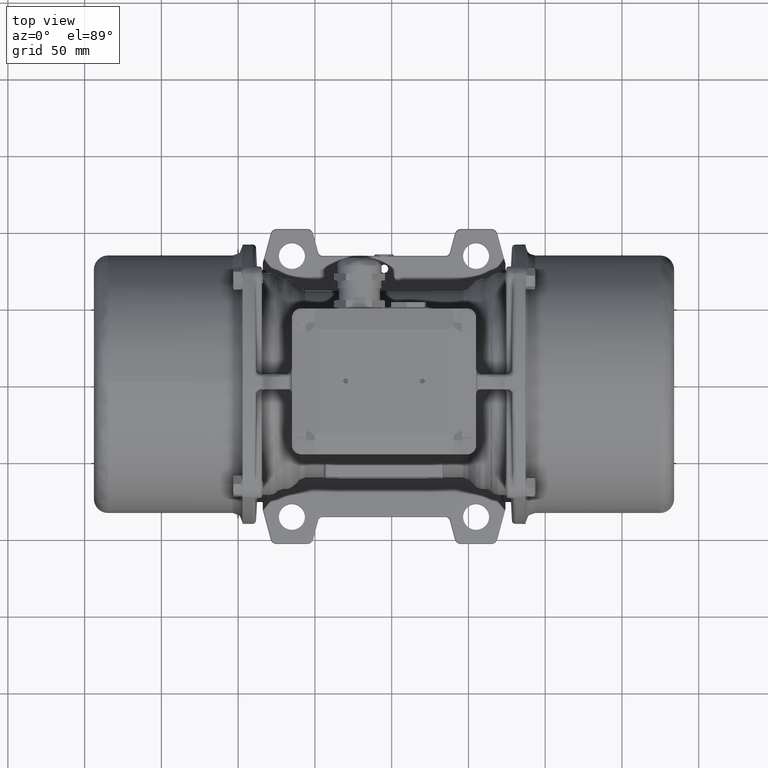
[diagram: clean part render]
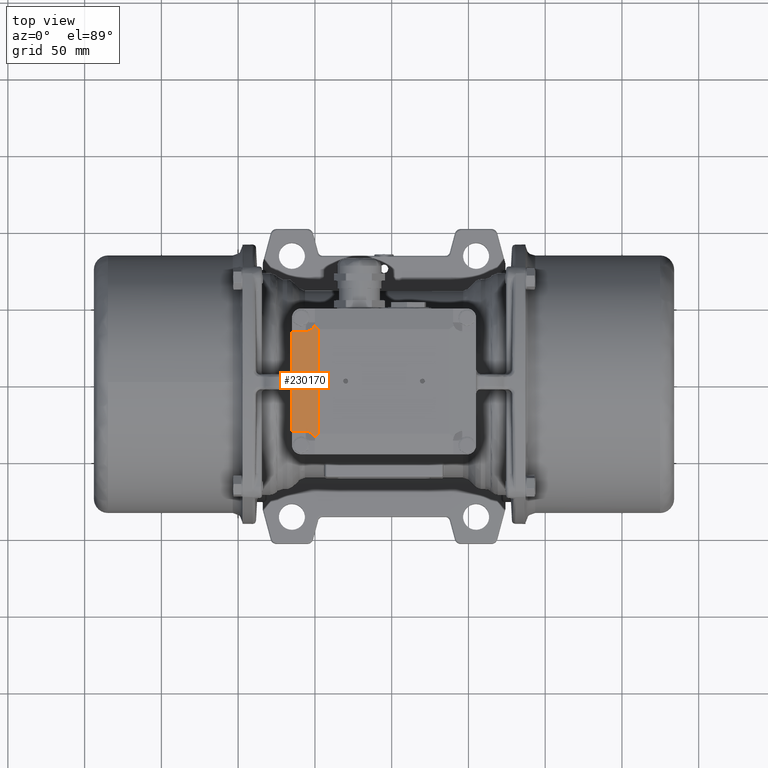
[diagram: same view with one face highlighted and labeled with its STEP entity id]
A machine part, top view. The second image highlights one B-rep face of the part: STEP entity #230170.
In plain terms, the highlighted planar face has unit normal (-0.169, 0, 0.9856).
Its self-contained STEP definition (entity closure, byte-faithful):
#15305 = EDGE_CURVE ( 'NONE', #110453, #136446, #65762, .T. ) ;
#15315 = EDGE_CURVE ( 'NONE', #136446, #110483, #18416, .T. ) ;
#15317 = EDGE_CURVE ( 'NONE', #110483, #136360, #65814, .T. ) ;
#15321 = EDGE_CURVE ( 'NONE', #110414, #110453, #65855, .T. ) ;
#15424 = EDGE_CURVE ( 'NONE', #136505, #110389, #66378, .T. ) ;
#15450 = EDGE_CURVE ( 'NONE', #110414, #110464, #66441, .T. ) ;
#15454 = EDGE_CURVE ( 'NONE', #110389, #110464, #18437, .T. ) ;
#15459 = EDGE_CURVE ( 'NONE', #136505, #136360, #66478, .T. ) ;
#18416 = B_SPLINE_CURVE_WITH_KNOTS ( 'NONE', 3,
 ( #65092, #65100, #65102, #65104, #65106, #65108, #65110, #65111, #65113, #65115, #65117, #65119, #65121, #65122, #65124, #65126 ),
 .UNSPECIFIED., .F., .F.,
 ( 4, 2, 2, 2, 2, 2, 2, 4 ),
 ( 9.664760850780578800E-017, 0.001789255609655789600, 0.002683883414483642500, 0.003578511219311495100, 0.004473139024139347700, 0.005367766828967200800, 0.006262394633795053000, 0.007157022438622906100 ),
 .UNSPECIFIED. ) ;
#18437 = B_SPLINE_CURVE_WITH_KNOTS ( 'NONE', 3,
 ( #65690, #65685, #65696, #65698, #65700, #65702, #65703, #65704, #65706, #65708, #65710, #65712, #65714, #65715 ),
 .UNSPECIFIED., .F., .F.,
 ( 4, 2, 2, 2, 2, 2, 4 ),
 ( 9.005604363847353800E-016, 0.001789554356158112000, 0.002684331534236716400, 0.003579108712315320100, 0.004473885890393923900, 0.005368663068472528100, 0.007158217424629723400 ),
 .UNSPECIFIED. ) ;
#46449 = CARTESIAN_POINT ( 'NONE',  ( -64.99999908357961000, 32.49999990928190400, 38.00000190734859700 ) ) ;
#46618 = CARTESIAN_POINT ( 'NONE',  ( -50.43282410804400200, 36.26246492815429400, 40.49723190315469900 ) ) ;
#46731 = CARTESIAN_POINT ( 'NONE',  ( -64.99999908357961000, -32.49999990928190400, 38.00000190734859700 ) ) ;
#65031 = CARTESIAN_POINT ( 'NONE',  ( -47.49999908357960300, 33.99999990928185400, 41.00000190734859700 ) ) ;
#65044 = DIRECTION ( 'NONE',  ( -0.7845877194088983800, 0.6052533835439801700, -0.1345007518986684700 ) ) ;
#65092 = CARTESIAN_POINT ( 'NONE',  ( -50.43282410804400200, 36.26246492815429400, 40.49723190315469900 ) ) ;
#65099 = CARTESIAN_POINT ( 'NONE',  ( -56.24999908357960300, 32.49999990928190400, 39.50000190734859700 ) ) ;
#65100 = CARTESIAN_POINT ( 'NONE',  ( -50.65802331653959100, 35.70215038198751500, 40.45862632455543200 ) ) ;
#65102 = CARTESIAN_POINT ( 'NONE',  ( -50.95984384170502300, 35.19023733037408200, 40.40688566309853500 ) ) ;
#65104 = CARTESIAN_POINT ( 'NONE',  ( -51.52422528310053500, 34.49289719227068200, 40.31013455885931800 ) ) ;
#65106 = CARTESIAN_POINT ( 'NONE',  ( -51.73076423191752600, 34.27371434484155100, 40.27472788191924700 ) ) ;
#65108 = CARTESIAN_POINT ( 'NONE',  ( -52.16809855690352300, 33.87351158178094600, 40.19975628335021200 ) ) ;
#65110 = CARTESIAN_POINT ( 'NONE',  ( -52.40037487177539800, 33.69056616853438200, 40.15993748651503400 ) ) ;
#65111 = CARTESIAN_POINT ( 'NONE',  ( -52.89218832989576700, 33.35904088472872100, 40.07562660798012600 ) ) ;
#65113 = CARTESIAN_POINT ( 'NONE',  ( -53.15360195353986200, 33.20984969578398700, 40.03081284392686000 ) ) ;
#65115 = CARTESIAN_POINT ( 'NONE',  ( -53.68827294238727900, 32.95530982313656000, 39.93915496012444800 ) ) ;
#65117 = CARTESIAN_POINT ( 'NONE',  ( -53.96291245694632000, 32.84870371273190400, 39.89207390048572700 ) ) ;
#65119 = CARTESIAN_POINT ( 'NONE',  ( -54.52660119573347700, 32.67625804604318100, 39.79544154526509200 ) ) ;
#65121 = CARTESIAN_POINT ( 'NONE',  ( -54.81728484804259000, 32.61020385219211400, 39.74561006201210500 ) ) ;
#65122 = CARTESIAN_POINT ( 'NONE',  ( -55.40573941704826700, 32.52209341906424800, 39.64473213589685900 ) ) ;
#65124 = CARTESIAN_POINT ( 'NONE',  ( -55.70189787076042600, 32.49999990928194600, 39.59396211526046700 ) ) ;
#65126 = CARTESIAN_POINT ( 'NONE',  ( -55.99999908357910500, 32.49999990928190400, 39.54285905020579900 ) ) ;
#65134 = DIRECTION ( 'NONE',  ( -0.9856222548132663700, 0.0000000000000000000, -0.1689638151108465400 ) ) ;
#65140 = CARTESIAN_POINT ( 'NONE',  ( -47.49999908357960300, -1.279080140154791900E-005, 41.00000190734859700 ) ) ;
#65155 = DIRECTION ( 'NONE',  ( 0.0000000000000000000, 1.000000000000000000, 0.0000000000000000000 ) ) ;
#65616 = CARTESIAN_POINT ( 'NONE',  ( -64.99999908357961000, -32.49999990928190400, 38.00000190734859700 ) ) ;
#65620 = DIRECTION ( 'NONE',  ( 0.9856222548132664900, 0.0000000000000000000, 0.1689638151108460700 ) ) ;
#65683 = CARTESIAN_POINT ( 'NONE',  ( -47.49999908357960300, -34.00000009071810300, 41.00000190734859700 ) ) ;
#65685 = CARTESIAN_POINT ( 'NONE',  ( -55.40363959903209700, -32.49999990928191100, 39.64509210469960700 ) ) ;
#65686 = DIRECTION ( 'NONE',  ( -0.7845877194088827200, -0.6052533835440008200, -0.1345007518986672000 ) ) ;
#65690 = CARTESIAN_POINT ( 'NONE',  ( -55.99999908357870000, -32.49999990928190400, 39.54285905020589800 ) ) ;
#65696 = CARTESIAN_POINT ( 'NONE',  ( -54.82183988267152600, -32.58698480422104600, 39.74482919893283400 ) ) ;
#65698 = CARTESIAN_POINT ( 'NONE',  ( -53.97062738875449400, -32.84583310876362100, 39.89075134074720100 ) ) ;
#65700 = CARTESIAN_POINT ( 'NONE',  ( -53.69101023055166900, -32.95420698245894900, 39.93868571072484000 ) ) ;
#65702 = CARTESIAN_POINT ( 'NONE',  ( -53.15745856155935900, -33.20781585246002300, 40.03015171112352300 ) ) ;
#65703 = CARTESIAN_POINT ( 'NONE',  ( -52.90110271248267500, -33.35368675377436900, 40.07409842810808700 ) ) ;
#65704 = CARTESIAN_POINT ( 'NONE',  ( -52.40939209980710000, -33.68385629624130200, 40.15839167599531800 ) ) ;
#65706 = CARTESIAN_POINT ( 'NONE',  ( -52.17225652147078600, -33.86998413263243200, 40.19904348942441900 ) ) ;
#65708 = CARTESIAN_POINT ( 'NONE',  ( -51.73265292478849600, -34.27171231560367900, 40.27440410599853500 ) ) ;
#65710 = CARTESIAN_POINT ( 'NONE',  ( -51.52934834028568600, -34.48736098757223800, 40.30925632048472100 ) ) ;
#65712 = CARTESIAN_POINT ( 'NONE',  ( -50.96836624532956300, -35.17815889575048500, 40.40542467962004700 ) ) ;
#65714 = CARTESIAN_POINT ( 'NONE',  ( -50.65807750108140800, -35.70201552575032600, 40.45861703577686800 ) ) ;
#65715 = CARTESIAN_POINT ( 'NONE',  ( -50.43282405238030500, -36.26246506665010100, 40.49723191269705300 ) ) ;
#65726 = CARTESIAN_POINT ( 'NONE',  ( -64.99999908357961000, -9.071813612815391000E-008, 38.00000190734859700 ) ) ;
#65728 = DIRECTION ( 'NONE',  ( 0.0000000000000000000, 1.000000000000000000, 0.0000000000000000000 ) ) ;
#65758 = VECTOR ( 'NONE', #65044, 1000.000000000000200 ) ;
#65762 = LINE ( 'NONE', #65031, #65758 ) ;
#65814 = LINE ( 'NONE', #65099, #65822 ) ;
#65822 = VECTOR ( 'NONE', #65134, 1000.000000000000300 ) ;
#65826 = VECTOR ( 'NONE', #65155, 1000.000000000000000 ) ;
#65855 = LINE ( 'NONE', #65140, #65826 ) ;
#66378 = LINE ( 'NONE', #65616, #66391 ) ;
#66391 = VECTOR ( 'NONE', #65620, 1000.000000000000200 ) ;
#66441 = LINE ( 'NONE', #65683, #66473 ) ;
#66473 = VECTOR ( 'NONE', #65686, 1000.000000000000000 ) ;
#66478 = LINE ( 'NONE', #65726, #66497 ) ;
#66497 = VECTOR ( 'NONE', #65728, 1000.000000000000000 ) ;
#78323 = EDGE_LOOP ( 'NONE', ( #222246, #222250, #222256, #222260, #222265, #222269, #222273, #222279 ) ) ;
#110389 = VERTEX_POINT ( 'NONE', #239613 ) ;
#110414 = VERTEX_POINT ( 'NONE', #239632 ) ;
#110453 = VERTEX_POINT ( 'NONE', #239659 ) ;
#110464 = VERTEX_POINT ( 'NONE', #239668 ) ;
#110483 = VERTEX_POINT ( 'NONE', #239681 ) ;
#136360 = VERTEX_POINT ( 'NONE', #46449 ) ;
#136446 = VERTEX_POINT ( 'NONE', #46618 ) ;
#136505 = VERTEX_POINT ( 'NONE', #46731 ) ;
#157413 = FACE_OUTER_BOUND ( 'NONE', #78323, .T. ) ;
#197848 = CARTESIAN_POINT ( 'NONE',  ( -64.99999908357961000, -36.26253237154269700, 38.00000190734859700 ) ) ;
#197849 = PLANE ( 'NONE',  #200699 ) ;
#197851 = DIRECTION ( 'NONE',  ( -0.1689638151108460700, 0.0000000000000000000, 0.9856222548132666000 ) ) ;
#197852 = DIRECTION ( 'NONE',  ( 0.9856222548132666000, 0.0000000000000000000, 0.1689638151108460700 ) ) ;
#200699 = AXIS2_PLACEMENT_3D ( 'NONE', #197848, #197851, #197852 ) ;
#222246 = ORIENTED_EDGE ( 'NONE', *, *, #15454, .T. ) ;
#222250 = ORIENTED_EDGE ( 'NONE', *, *, #15450, .F. ) ;
#222256 = ORIENTED_EDGE ( 'NONE', *, *, #15321, .T. ) ;
#222260 = ORIENTED_EDGE ( 'NONE', *, *, #15305, .T. ) ;
#222265 = ORIENTED_EDGE ( 'NONE', *, *, #15315, .T. ) ;
#222269 = ORIENTED_EDGE ( 'NONE', *, *, #15317, .T. ) ;
#222273 = ORIENTED_EDGE ( 'NONE', *, *, #15459, .F. ) ;
#222279 = ORIENTED_EDGE ( 'NONE', *, *, #15424, .T. ) ;
#230170 = ADVANCED_FACE ( 'NONE', ( #157413 ), #197849, .T. ) ;
#239613 = CARTESIAN_POINT ( 'NONE',  ( -55.99999908357870000, -32.49999990928190400, 39.54285905020589800 ) ) ;
#239632 = CARTESIAN_POINT ( 'NONE',  ( -47.49999908357960300, -34.00000009071810300, 41.00000190734859700 ) ) ;
#239659 = CARTESIAN_POINT ( 'NONE',  ( -47.49999908373800400, 33.99999990940705200, 41.00000190733499700 ) ) ;
#239668 = CARTESIAN_POINT ( 'NONE',  ( -50.43282405238030500, -36.26246506665010100, 40.49723191269705300 ) ) ;
#239681 = CARTESIAN_POINT ( 'NONE',  ( -55.99999908357910500, 32.49999990928190400, 39.54285905020579900 ) ) ;